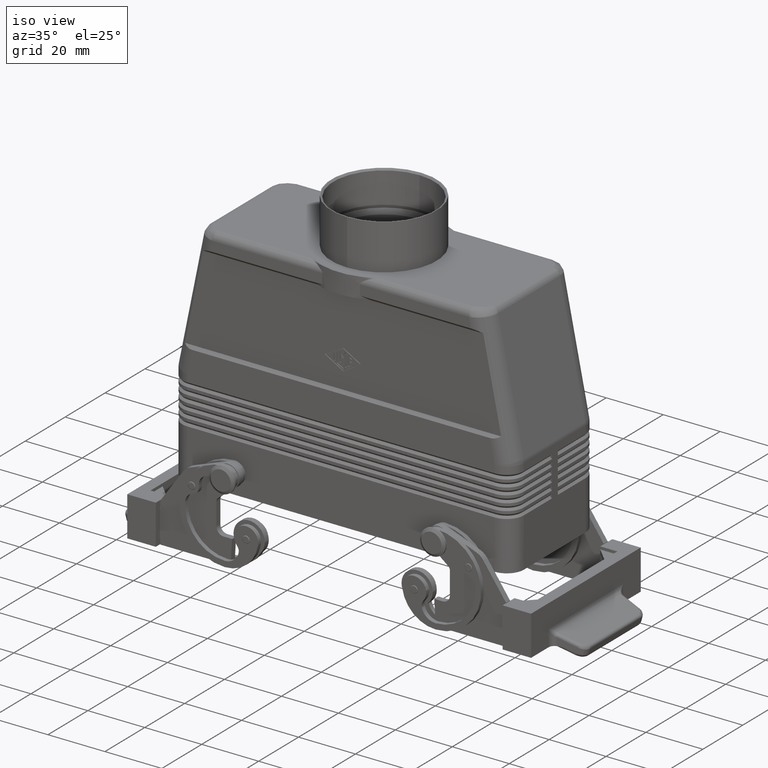
[diagram: clean part render]
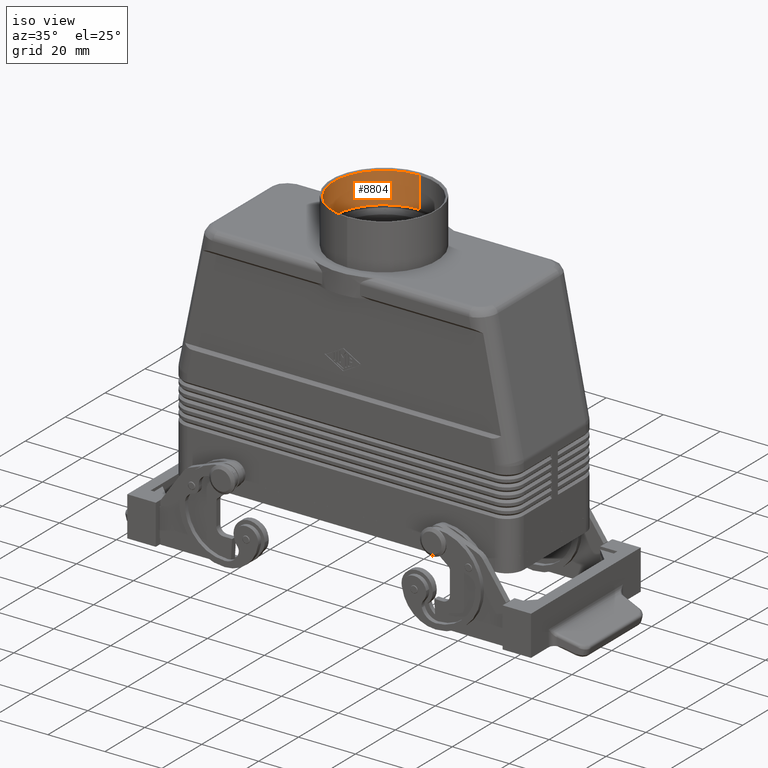
[diagram: same view with one face highlighted and labeled with its STEP entity id]
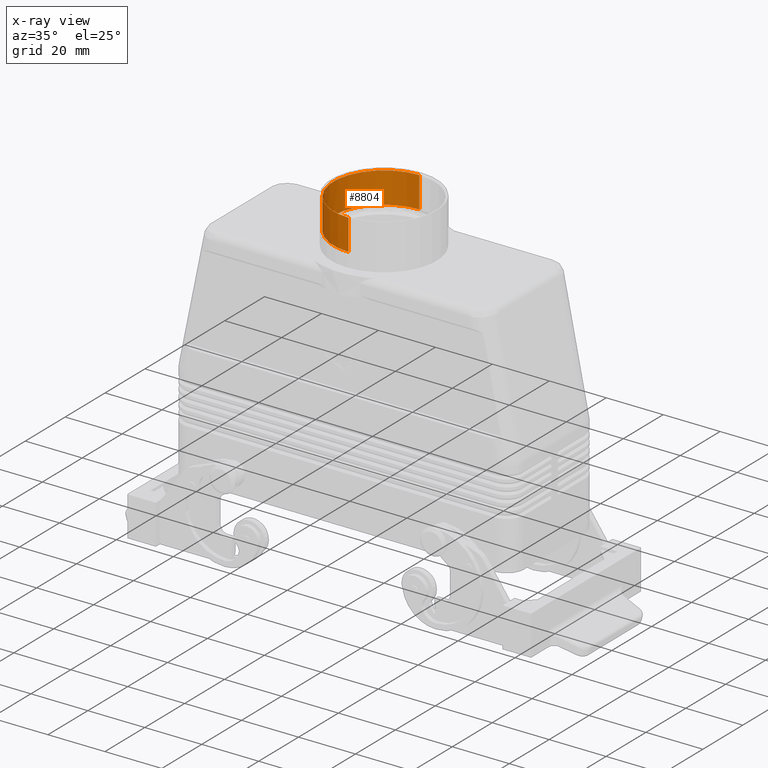
[diagram: x-ray of the same camera — body ghosted, the highlighted face saturated]
A machine part, iso view. The second image highlights one B-rep face of the part: STEP entity #8804.
The next image is the same camera in x-ray: the body ghosted, the highlighted face saturated — about 0% of this face is hidden behind the body in this view.
In plain terms, the highlighted cylindrical surface (partial cylindrical patch) has radius 17.74 mm, axis along (0, 0, -1).
Its self-contained STEP definition (entity closure, byte-faithful):
#8729=CARTESIAN_POINT('',(0.0,17.739999999999984,96.499999999999986));
#8730=VERTEX_POINT('',#8729);
#8746=CARTESIAN_POINT('',(2.172452E-015,-17.740000000000020,96.500000000000000));
#8747=VERTEX_POINT('',#8746);
#8754=CARTESIAN_POINT('',(0.0,-1.602086E-014,96.499999999999986));
#8755=DIRECTION('',(0.0,0.0,-1.0));
#8756=DIRECTION('',(0.0,1.0,0.0));
#8757=AXIS2_PLACEMENT_3D('',#8754,#8755,#8756);
#8758=CIRCLE('',#8757,17.740000000000002);
#8759=EDGE_CURVE('',#8747,#8730,#8758,.T.);
#8764=CARTESIAN_POINT('',(0.0,-1.447804E-014,91.059016994374943));
#8765=DIRECTION('',(0.0,2.835550E-016,-1.0));
#8766=DIRECTION('',(0.0,1.0,0.0));
#8767=AXIS2_PLACEMENT_3D('',#8764,#8765,#8766);
#8768=CYLINDRICAL_SURFACE('',#8767,17.740000000000002);
#8769=CARTESIAN_POINT('',(0.0,17.739999999999988,85.618033988749886));
#8770=VERTEX_POINT('',#8769);
#8771=CARTESIAN_POINT('',(0.0,17.739999999999984,96.499999999999986));
#8772=DIRECTION('',(0.0,0.0,-1.0));
#8773=VECTOR('',#8772,10.881966011250100);
#8774=LINE('',#8771,#8773);
#8775=EDGE_CURVE('',#8730,#8770,#8774,.T.);
#8776=ORIENTED_EDGE('',*,*,#8775,.F.);
#8777=ORIENTED_EDGE('',*,*,#8759,.F.);
#8778=CARTESIAN_POINT('',(2.172452E-015,-17.740000000000016,85.618033988749886));
#8779=VERTEX_POINT('',#8778);
#8780=CARTESIAN_POINT('',(2.172452E-015,-17.740000000000016,85.618033988749886));
#8781=DIRECTION('',(0.0,0.0,1.0));
#8782=VECTOR('',#8781,10.881966011250114);
#8783=LINE('',#8780,#8782);
#8784=EDGE_CURVE('',#8779,#8747,#8783,.T.);
#8785=ORIENTED_EDGE('',*,*,#8784,.F.);
#8786=CARTESIAN_POINT('',(-17.740000000000002,-1.359171E-014,85.618033988749886));
#8787=VERTEX_POINT('',#8786);
#8788=CARTESIAN_POINT('',(0.0,-1.293522E-014,85.618033988749886));
#8789=DIRECTION('',(0.0,0.0,-1.0));
#8790=DIRECTION('',(0.0,1.0,0.0));
#8791=AXIS2_PLACEMENT_3D('',#8788,#8789,#8790);
#8792=CIRCLE('',#8791,17.740000000000002);
#8793=EDGE_CURVE('',#8779,#8787,#8792,.T.);
#8794=ORIENTED_EDGE('',*,*,#8793,.T.);
#8795=CARTESIAN_POINT('',(0.0,-1.293522E-014,85.618033988749886));
#8796=DIRECTION('',(0.0,0.0,-1.0));
#8797=DIRECTION('',(0.0,1.0,0.0));
#8798=AXIS2_PLACEMENT_3D('',#8795,#8796,#8797);
#8799=CIRCLE('',#8798,17.740000000000002);
#8800=EDGE_CURVE('',#8787,#8770,#8799,.T.);
#8801=ORIENTED_EDGE('',*,*,#8800,.T.);
#8802=EDGE_LOOP('',(#8776,#8777,#8785,#8794,#8801));
#8803=FACE_OUTER_BOUND('',#8802,.T.);
#8804=ADVANCED_FACE('',(#8803),#8768,.F.);